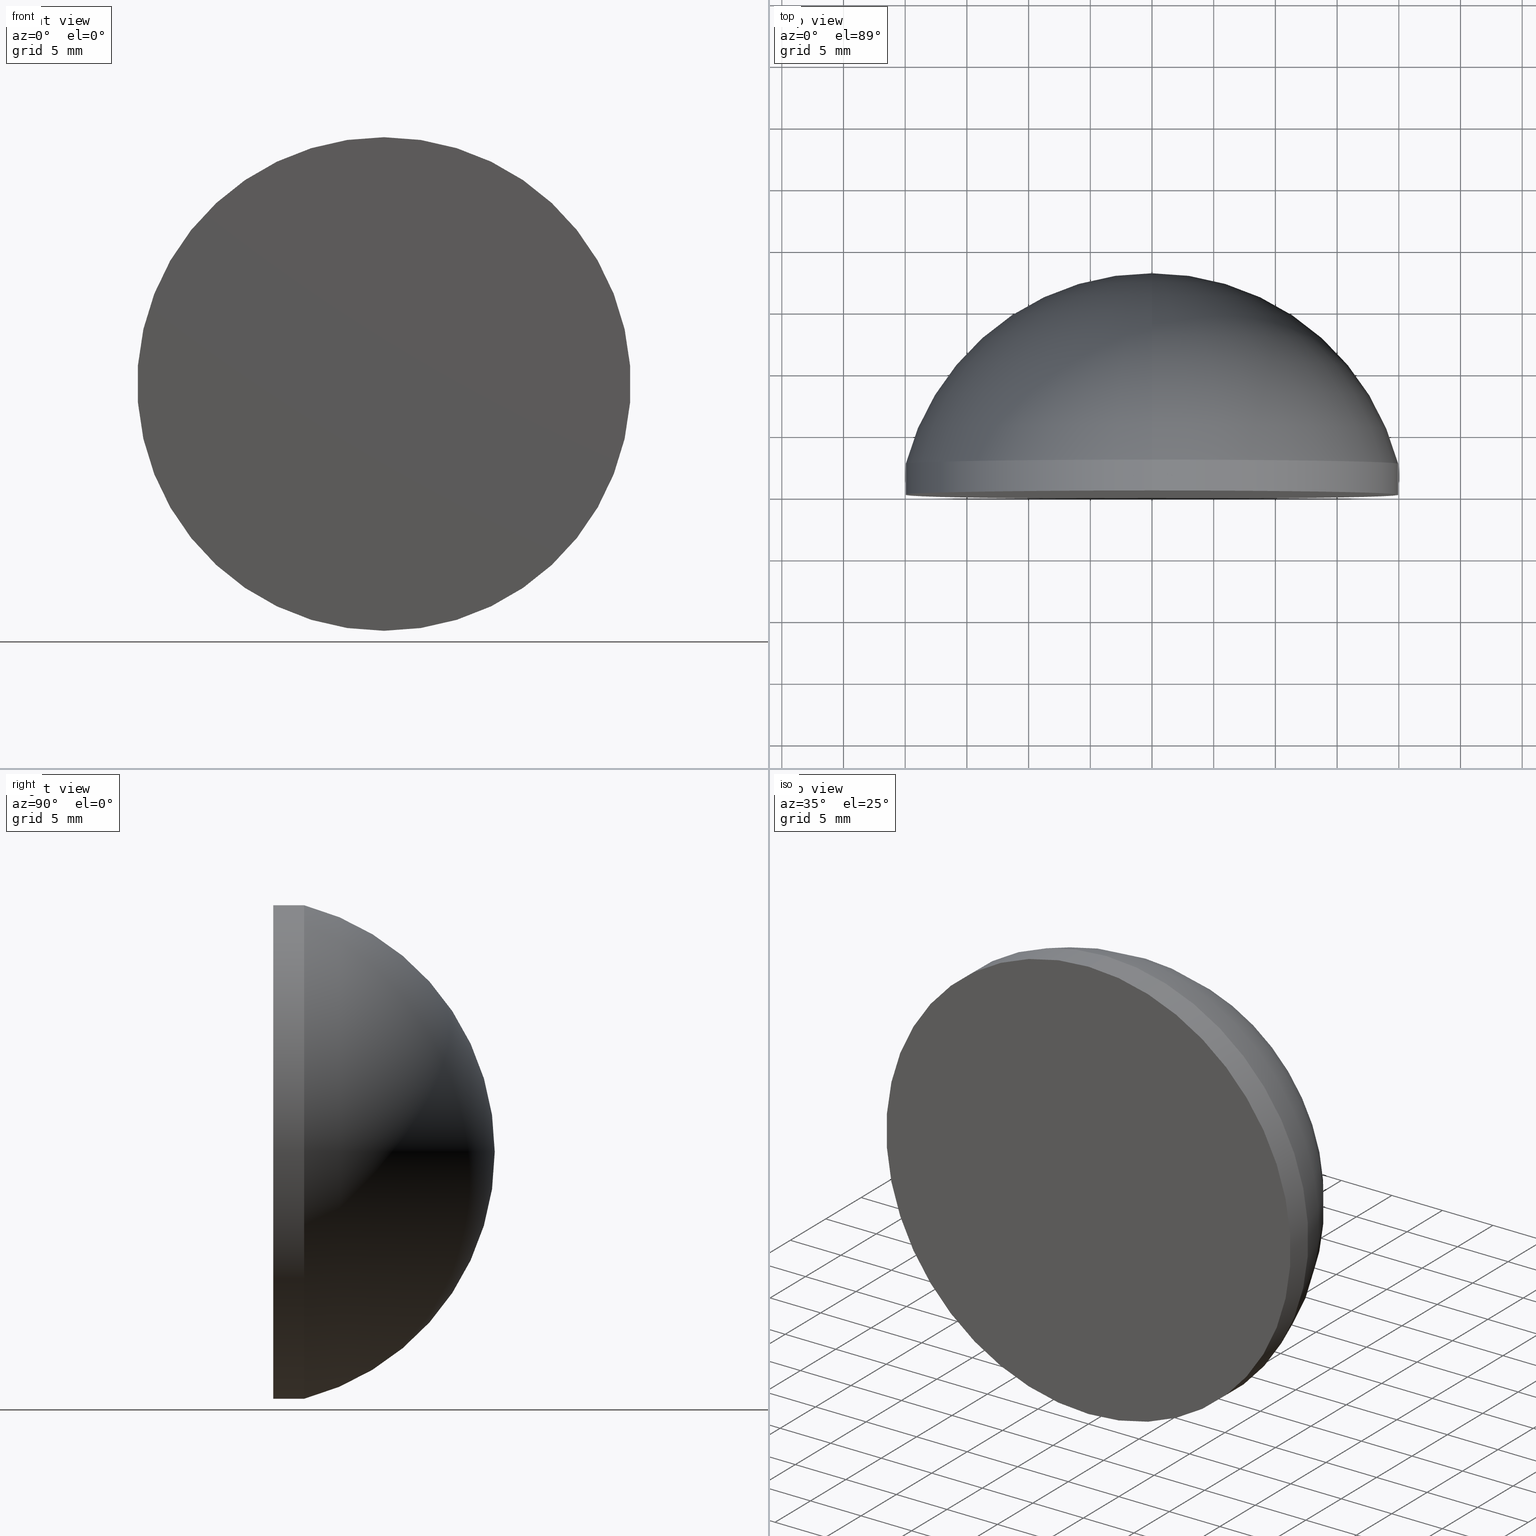
[diagram: canonical four-view strip — front | top / right | iso, engineering-drawing reading convention]
A machine part, canonical four-view strip (front | top / right | iso — engineering-drawing reading convention). The complete STEP part file that produces these views, byte-faithful:
ISO-10303-21;
HEADER;
FILE_DESCRIPTION (( 'STEP AP203' ),
    '1' );
FILE_NAME ('100604.STEP',
    '2024-05-10T02:41:20',
    ( '' ),
    ( '' ),
    'SwSTEP 2.0',
    'SolidWorks 2020',
    '' );
FILE_SCHEMA (( 'CONFIG_CONTROL_DESIGN' ));
ENDSEC;

DATA;
#1 = PERSON_AND_ORGANIZATION ( #145, #55 ) ;
#2 = AXIS2_PLACEMENT_3D ( 'NONE', #152, #191, #124 ) ;
#3 = ADVANCED_BREP_SHAPE_REPRESENTATION ( '100604', ( #75, #122 ), #146 ) ;
#4 = ADVANCED_FACE ( 'NONE', ( #38 ), #69, .T. ) ;
#5 = CIRCLE ( 'NONE', #148, 20.00000000000000000 ) ;
#6 = CC_DESIGN_DATE_AND_TIME_ASSIGNMENT ( #171, #92, ( #60 ) ) ;
#7 = ORIENTED_EDGE ( 'NONE', *, *, #156, .F. ) ;
#8 = CARTESIAN_POINT ( 'NONE',  ( 0.000000000000000000, -2.719999999996280948, -1.249999703745174884E-05 ) ) ;
#9 = APPROVAL_STATUS ( 'not_yet_approved' ) ;
#10 = CARTESIAN_POINT ( 'NONE',  ( 0.000000000000000000, 17.94999999999999929, 0.000000000000000000 ) ) ;
#11 = COORDINATED_UNIVERSAL_TIME_OFFSET ( 8, 0, .AHEAD. ) ;
#12 = ORIENTED_EDGE ( 'NONE', *, *, #114, .F. ) ;
#13 = AXIS2_PLACEMENT_3D ( 'NONE', #113, #65, #100 ) ;
#14 = CARTESIAN_POINT ( 'NONE',  ( 0.000000000000000000, 17.94999999999999929, 20.00000000000000000 ) ) ;
#15 = CC_DESIGN_PERSON_AND_ORGANIZATION_ASSIGNMENT ( #188, #17, ( #60 ) ) ;
#16 = DIRECTION ( 'NONE',  ( -0.000000000000000000, 1.000000000000000000, -0.000000000000000000 ) ) ;
#17 = PERSON_AND_ORGANIZATION_ROLE ( 'classification_officer' ) ;
#18 = AXIS2_PLACEMENT_3D ( 'NONE', #30, #49, #32 ) ;
#19 = CARTESIAN_POINT ( 'NONE',  ( 0.000000000000000000, 0.000000000000000000, 0.000000000000000000 ) ) ;
#20 = EDGE_CURVE ( 'NONE', #181, #27, #119, .T. ) ;
#21 = APPLICATION_CONTEXT ( 'configuration controlled 3d designs of mechanical parts and assemblies' ) ;
#22 = AXIS2_PLACEMENT_3D ( 'NONE', #26, #107, #136 ) ;
#23 = ORIENTED_EDGE ( 'NONE', *, *, #168, .F. ) ;
#24 = APPLICATION_CONTEXT ( 'configuration controlled 3d designs of mechanical parts and assemblies' ) ;
#25 = LOCAL_TIME ( 10, 41, 20.00000000000000000, #104 ) ;
#26 = CARTESIAN_POINT ( 'NONE',  ( 0.000000000000000000, -2.719999999996280948, 0.000000000000000000 ) ) ;
#27 = VERTEX_POINT ( 'NONE', #76 ) ;
#28 = EDGE_CURVE ( 'NONE', #139, #27, #200, .T. ) ;
#29 = ADVANCED_FACE ( 'NONE', ( #43 ), #193, .T. ) ;
#30 = CARTESIAN_POINT ( 'NONE',  ( 0.000000000000000000, 17.94999999999999929, 0.000000000000000000 ) ) ;
#31 = AXIS2_PLACEMENT_3D ( 'NONE', #56, #73, #177 ) ;
#32 = DIRECTION ( 'NONE',  ( 0.000000000000000000, 0.000000000000000000, 1.000000000000000000 ) ) ;
#33 = DIRECTION ( 'NONE',  ( 0.000000000000000000, 0.000000000000000000, 1.000000000000000000 ) ) ;
#34 = APPROVAL_DATE_TIME ( #42, #121 ) ;
#35 =( NAMED_UNIT ( * ) SI_UNIT ( $, .STERADIAN. ) SOLID_ANGLE_UNIT ( ) );
#36 = CIRCLE ( 'NONE', #102, 20.00000000000000000 ) ;
#37 = CIRCLE ( 'NONE', #115, 20.00000000000000000 ) ;
#38 = FACE_OUTER_BOUND ( 'NONE', #72, .T. ) ;
#39 = EDGE_LOOP ( 'NONE', ( #108, #134, #196, #137 ) ) ;
#40 = ORIENTED_EDGE ( 'NONE', *, *, #198, .T. ) ;
#41 = CYLINDRICAL_SURFACE ( 'NONE', #189, 20.00000000000000000 ) ;
#42 = DATE_AND_TIME ( #67, #25 ) ;
#43 = FACE_OUTER_BOUND ( 'NONE', #91, .T. ) ;
#44 = SHAPE_DEFINITION_REPRESENTATION ( #131, #3 ) ;
#45 = COORDINATED_UNIVERSAL_TIME_OFFSET ( 8, 0, .AHEAD. ) ;
#46 = PRODUCT ( '100604', '100604', '', ( #185 ) ) ;
#47 =( LENGTH_UNIT ( ) NAMED_UNIT ( * ) SI_UNIT ( .MILLI., .METRE. ) );
#48 = APPROVAL_DATE_TIME ( #101, #147 ) ;
#49 = DIRECTION ( 'NONE',  ( -0.000000000000000000, 1.000000000000000000, -0.000000000000000000 ) ) ;
#50 = COORDINATED_UNIVERSAL_TIME_OFFSET ( 8, 0, .AHEAD. ) ;
#51 = DATE_AND_TIME ( #120, #90 ) ;
#52 = APPROVAL_ROLE ( '' ) ;
#53 = ADVANCED_FACE ( 'NONE', ( #58 ), #41, .T. ) ;
#54 = EDGE_LOOP ( 'NONE', ( #158, #179, #157 ) ) ;
#55 = ORGANIZATION ( 'δָ��', 'δָ��', '' ) ;
#56 = CARTESIAN_POINT ( 'NONE',  ( 0.000000000000000000, -1.224646799147353059E-15, 0.000000000000000000 ) ) ;
#57 = ORIENTED_EDGE ( 'NONE', *, *, #176, .T. ) ;
#58 = FACE_OUTER_BOUND ( 'NONE', #39, .T. ) ;
#59 = PERSON_AND_ORGANIZATION ( #145, #55 ) ;
#60 = SECURITY_CLASSIFICATION ( '', '', #62 ) ;
#61 = CARTESIAN_POINT ( 'NONE',  ( 0.000000000000000000, -3.469446951953614189E-15, 20.00000000000000000 ) ) ;
#62 = SECURITY_CLASSIFICATION_LEVEL ( 'unclassified' ) ;
#63 = DESIGN_CONTEXT ( 'detailed design', #21, 'design' ) ;
#64 = CYLINDRICAL_SURFACE ( 'NONE', #18, 20.00000000000000000 ) ;
#65 = DIRECTION ( 'NONE',  ( -0.000000000000000000, 1.000000000000000000, -0.000000000000000000 ) ) ;
#66 = VECTOR ( 'NONE', #116, 1000.000000000000000 ) ;
#67 = CALENDAR_DATE ( 2024, 10, 5 ) ;
#68 = APPROVAL_ROLE ( '' ) ;
#69 = TOROIDAL_SURFACE ( 'NONE', #22, -1.249999703745174884E-05, 20.67000000000001592 ) ;
#70 = DIRECTION ( 'NONE',  ( -1.000000000000000000, 0.000000000000000000, 0.000000000000000000 ) ) ;
#71 = CLOSED_SHELL ( 'NONE', ( #99, #82, #4, #29, #53 ) ) ;
#72 = EDGE_LOOP ( 'NONE', ( #93, #40, #95 ) ) ;
#73 = DIRECTION ( 'NONE',  ( 0.000000000000000000, -1.000000000000000000, 0.000000000000000000 ) ) ;
#74 = APPROVAL_ROLE ( '' ) ;
#75 = MANIFOLD_SOLID_BREP ( '��ת1', #71 ) ;
#76 = CARTESIAN_POINT ( 'NONE',  ( 0.000000000000000000, 17.94999999999999929, 0.000000000000000000 ) ) ;
#77 = CALENDAR_DATE ( 2024, 10, 5 ) ;
#78 = VERTEX_POINT ( 'NONE', #61 ) ;
#79 = LINE ( 'NONE', #140, #132 ) ;
#80 = CARTESIAN_POINT ( 'NONE',  ( 2.449293598294706513E-15, -3.469446951953614189E-15, -20.00000000000000000 ) ) ;
#81 = APPROVAL ( #162, 'δָ��' ) ;
#82 = ADVANCED_FACE ( 'NONE', ( #97 ), #187, .T. ) ;
#83 = DIRECTION ( 'NONE',  ( 0.000000000000000000, 0.000000000000000000, 1.000000000000000000 ) ) ;
#84 = CC_DESIGN_APPROVAL ( #147, ( #60 ) ) ;
#85 = APPLICATION_PROTOCOL_DEFINITION ( 'international standard', 'config_control_design', 1994, #21 ) ;
#86 = PERSON_AND_ORGANIZATION ( #145, #55 ) ;
#87 = CC_DESIGN_APPROVAL ( #81, ( #98 ) ) ;
#88 = UNCERTAINTY_MEASURE_WITH_UNIT (LENGTH_MEASURE( 1.000000000000000082E-05 ), #47, 'distance_accuracy_value', 'NONE');
#89 = CC_DESIGN_PERSON_AND_ORGANIZATION_ASSIGNMENT ( #1, #151, ( #192 ) ) ;
#90 = LOCAL_TIME ( 10, 41, 20.00000000000000000, #50 ) ;
#91 = EDGE_LOOP ( 'NONE', ( #23, #12 ) ) ;
#92 = DATE_TIME_ROLE ( 'classification_date' ) ;
#93 = ORIENTED_EDGE ( 'NONE', *, *, #28, .F. ) ;
#94 =( NAMED_UNIT ( * ) PLANE_ANGLE_UNIT ( ) SI_UNIT ( $, .RADIAN. ) );
#95 = ORIENTED_EDGE ( 'NONE', *, *, #20, .T. ) ;
#96 = FACE_OUTER_BOUND ( 'NONE', #149, .T. ) ;
#97 = FACE_OUTER_BOUND ( 'NONE', #54, .T. ) ;
#98 = PRODUCT_DEFINITION ( 'δ֪', '', #192, #63 ) ;
#99 = ADVANCED_FACE ( 'NONE', ( #96 ), #64, .T. ) ;
#100 = DIRECTION ( 'NONE',  ( 0.000000000000000000, 0.000000000000000000, 1.000000000000000000 ) ) ;
#101 = DATE_AND_TIME ( #112, #160 ) ;
#102 = AXIS2_PLACEMENT_3D ( 'NONE', #154, #141, #117 ) ;
#103 = APPROVAL_DATE_TIME ( #51, #81 ) ;
#104 = COORDINATED_UNIVERSAL_TIME_OFFSET ( 8, 0, .AHEAD. ) ;
#105 = AXIS2_PLACEMENT_3D ( 'NONE', #8, #70, #194 ) ;
#106 = CC_DESIGN_SECURITY_CLASSIFICATION ( #60, ( #192 ) ) ;
#107 = DIRECTION ( 'NONE',  ( -0.000000000000000000, 1.000000000000000000, -0.000000000000000000 ) ) ;
#108 = ORIENTED_EDGE ( 'NONE', *, *, #176, .F. ) ;
#109 = CC_DESIGN_APPROVAL ( #121, ( #192 ) ) ;
#110 = DIRECTION ( 'NONE',  ( -0.000000000000000000, 1.000000000000000000, -0.000000000000000000 ) ) ;
#111 = CALENDAR_DATE ( 2024, 10, 5 ) ;
#112 = CALENDAR_DATE ( 2024, 10, 5 ) ;
#113 = CARTESIAN_POINT ( 'NONE',  ( 0.000000000000000000, 2.499999999999996891, 0.000000000000000000 ) ) ;
#114 = EDGE_CURVE ( 'NONE', #178, #78, #36, .T. ) ;
#115 = AXIS2_PLACEMENT_3D ( 'NONE', #128, #130, #184 ) ;
#116 = DIRECTION ( 'NONE',  ( -0.000000000000000000, 1.000000000000000000, -0.000000000000000000 ) ) ;
#117 = DIRECTION ( 'NONE',  ( 0.000000000000000000, 0.000000000000000000, 1.000000000000000000 ) ) ;
#118 = PERSON_AND_ORGANIZATION_ROLE ( 'design_owner' ) ;
#119 = CIRCLE ( 'NONE', #105, 20.67000000000001592 ) ;
#120 = CALENDAR_DATE ( 2024, 10, 5 ) ;
#121 = APPROVAL ( #138, 'δָ��' ) ;
#122 = AXIS2_PLACEMENT_3D ( 'NONE', #19, #83, #201 ) ;
#123 = PERSON_AND_ORGANIZATION_ROLE ( 'creator' ) ;
#124 = DIRECTION ( 'NONE',  ( 1.224646799147353207E-16, 0.000000000000000000, -1.000000000000000000 ) ) ;
#125 = PERSON_AND_ORGANIZATION ( #145, #55 ) ;
#126 = DIRECTION ( 'NONE',  ( 0.000000000000000000, 0.000000000000000000, 1.000000000000000000 ) ) ;
#127 = EDGE_CURVE ( 'NONE', #78, #181, #199, .T. ) ;
#128 = CARTESIAN_POINT ( 'NONE',  ( 0.000000000000000000, 2.499999999999996891, 0.000000000000000000 ) ) ;
#129 = AXIS2_PLACEMENT_3D ( 'NONE', #166, #153, #33 ) ;
#130 = DIRECTION ( 'NONE',  ( -0.000000000000000000, 1.000000000000000000, -0.000000000000000000 ) ) ;
#131 = PRODUCT_DEFINITION_SHAPE ( 'NONE', 'NONE',  #98 ) ;
#132 = VECTOR ( 'NONE', #165, 1000.000000000000000 ) ;
#133 = PERSON_AND_ORGANIZATION_ROLE ( 'design_supplier' ) ;
#134 = ORIENTED_EDGE ( 'NONE', *, *, #114, .T. ) ;
#135 = APPROVAL_PERSON_ORGANIZATION ( #170, #121, #68 ) ;
#136 = DIRECTION ( 'NONE',  ( 0.000000000000000000, 0.000000000000000000, 1.000000000000000000 ) ) ;
#137 = ORIENTED_EDGE ( 'NONE', *, *, #198, .F. ) ;
#138 = APPROVAL_STATUS ( 'not_yet_approved' ) ;
#139 = VERTEX_POINT ( 'NONE', #163 ) ;
#140 = CARTESIAN_POINT ( 'NONE',  ( 2.449293598294706513E-15, 17.94999999999999929, -20.00000000000000000 ) ) ;
#141 = DIRECTION ( 'NONE',  ( -0.000000000000000000, 1.000000000000000000, -0.000000000000000000 ) ) ;
#142 = APPLICATION_PROTOCOL_DEFINITION ( 'international standard', 'config_control_design', 1994, #24 ) ;
#143 = DATE_AND_TIME ( #77, #172 ) ;
#144 = PERSON_AND_ORGANIZATION ( #145, #55 ) ;
#145 = PERSON ( 'δָ��', 'δָ��', 'δָ��', ('δָ��'), ('δָ��'), ('δָ��') ) ;
#146 =( GEOMETRIC_REPRESENTATION_CONTEXT ( 3 ) GLOBAL_UNCERTAINTY_ASSIGNED_CONTEXT ( ( #88 ) ) GLOBAL_UNIT_ASSIGNED_CONTEXT ( ( #47, #94, #35 ) ) REPRESENTATION_CONTEXT ( 'NONE', 'WORKASPACE' ) );
#147 = APPROVAL ( #9, 'δָ��' ) ;
#148 = AXIS2_PLACEMENT_3D ( 'NONE', #155, #16, #126 ) ;
#149 = EDGE_LOOP ( 'NONE', ( #159, #57, #7, #173 ) ) ;
#150 = CC_DESIGN_DATE_AND_TIME_ASSIGNMENT ( #143, #180, ( #98 ) ) ;
#151 = PERSON_AND_ORGANIZATION_ROLE ( 'creator' ) ;
#152 = CARTESIAN_POINT ( 'NONE',  ( -1.530808136126668131E-21, -2.719999999996280948, 1.249999703745174884E-05 ) ) ;
#153 = DIRECTION ( 'NONE',  ( -0.000000000000000000, 1.000000000000000000, -0.000000000000000000 ) ) ;
#154 = CARTESIAN_POINT ( 'NONE',  ( 0.000000000000000000, -3.469446951953614189E-15, 0.000000000000000000 ) ) ;
#155 = CARTESIAN_POINT ( 'NONE',  ( 0.000000000000000000, -3.469446951953614189E-15, 0.000000000000000000 ) ) ;
#156 = EDGE_CURVE ( 'NONE', #181, #139, #174, .T. ) ;
#157 = ORIENTED_EDGE ( 'NONE', *, *, #20, .F. ) ;
#158 = ORIENTED_EDGE ( 'NONE', *, *, #156, .T. ) ;
#159 = ORIENTED_EDGE ( 'NONE', *, *, #168, .T. ) ;
#160 = LOCAL_TIME ( 10, 41, 20.00000000000000000, #45 ) ;
#161 = DIRECTION ( 'NONE',  ( 0.000000000000000000, 0.000000000000000000, 1.000000000000000000 ) ) ;
#162 = APPROVAL_STATUS ( 'not_yet_approved' ) ;
#163 = CARTESIAN_POINT ( 'NONE',  ( 2.449293598294709274E-15, 2.499999999999996891, -20.00000000000002132 ) ) ;
#164 = APPROVAL_PERSON_ORGANIZATION ( #144, #81, #52 ) ;
#165 = DIRECTION ( 'NONE',  ( -0.000000000000000000, 1.000000000000000000, -0.000000000000000000 ) ) ;
#166 = CARTESIAN_POINT ( 'NONE',  ( 0.000000000000000000, -2.719999999996280948, 0.000000000000000000 ) ) ;
#167 = PRODUCT_RELATED_PRODUCT_CATEGORY ( 'detail', '', ( #46 ) ) ;
#168 = EDGE_CURVE ( 'NONE', #78, #178, #5, .T. ) ;
#169 = LOCAL_TIME ( 10, 41, 20.00000000000000000, #195 ) ;
#170 = PERSON_AND_ORGANIZATION ( #145, #55 ) ;
#171 = DATE_AND_TIME ( #111, #169 ) ;
#172 = LOCAL_TIME ( 10, 41, 20.00000000000000000, #11 ) ;
#173 = ORIENTED_EDGE ( 'NONE', *, *, #127, .F. ) ;
#174 = CIRCLE ( 'NONE', #13, 20.00000000000000000 ) ;
#175 = APPROVAL_PERSON_ORGANIZATION ( #125, #147, #74 ) ;
#176 = EDGE_CURVE ( 'NONE', #178, #139, #79, .T. ) ;
#177 = DIRECTION ( 'NONE',  ( 0.000000000000000000, -0.000000000000000000, -1.000000000000000000 ) ) ;
#178 = VERTEX_POINT ( 'NONE', #80 ) ;
#179 = ORIENTED_EDGE ( 'NONE', *, *, #28, .T. ) ;
#180 = DATE_TIME_ROLE ( 'creation_date' ) ;
#181 = VERTEX_POINT ( 'NONE', #197 ) ;
#182 = PERSON_AND_ORGANIZATION ( #145, #55 ) ;
#183 = CC_DESIGN_PERSON_AND_ORGANIZATION_ASSIGNMENT ( #59, #118, ( #46 ) ) ;
#184 = DIRECTION ( 'NONE',  ( 0.000000000000000000, 0.000000000000000000, 1.000000000000000000 ) ) ;
#185 = MECHANICAL_CONTEXT ( 'NONE', #24, 'mechanical' ) ;
#186 = CC_DESIGN_PERSON_AND_ORGANIZATION_ASSIGNMENT ( #86, #133, ( #192 ) ) ;
#187 = TOROIDAL_SURFACE ( 'NONE', #129, -1.249999703745174884E-05, 20.67000000000001592 ) ;
#188 = PERSON_AND_ORGANIZATION ( #145, #55 ) ;
#189 = AXIS2_PLACEMENT_3D ( 'NONE', #10, #110, #161 ) ;
#190 = CC_DESIGN_PERSON_AND_ORGANIZATION_ASSIGNMENT ( #182, #123, ( #98 ) ) ;
#191 = DIRECTION ( 'NONE',  ( 1.000000000000000000, 0.000000000000000000, 1.224646799147353207E-16 ) ) ;
#192 = PRODUCT_DEFINITION_FORMATION_WITH_SPECIFIED_SOURCE ( '�κ�', '', #46, .NOT_KNOWN. ) ;
#193 = PLANE ( 'NONE',  #31 ) ;
#194 = DIRECTION ( 'NONE',  ( 0.000000000000000000, 0.000000000000000000, 1.000000000000000000 ) ) ;
#195 = COORDINATED_UNIVERSAL_TIME_OFFSET ( 8, 0, .AHEAD. ) ;
#196 = ORIENTED_EDGE ( 'NONE', *, *, #127, .T. ) ;
#197 = CARTESIAN_POINT ( 'NONE',  ( 0.000000000000000000, 2.499999999999996891, 20.00000000000002132 ) ) ;
#198 = EDGE_CURVE ( 'NONE', #139, #181, #37, .T. ) ;
#199 = LINE ( 'NONE', #14, #66 ) ;
#200 = CIRCLE ( 'NONE', #2, 20.67000000000001592 ) ;
#201 = DIRECTION ( 'NONE',  ( 1.000000000000000000, 0.000000000000000000, 0.000000000000000000 ) ) ;
ENDSEC;
END-ISO-10303-21;
